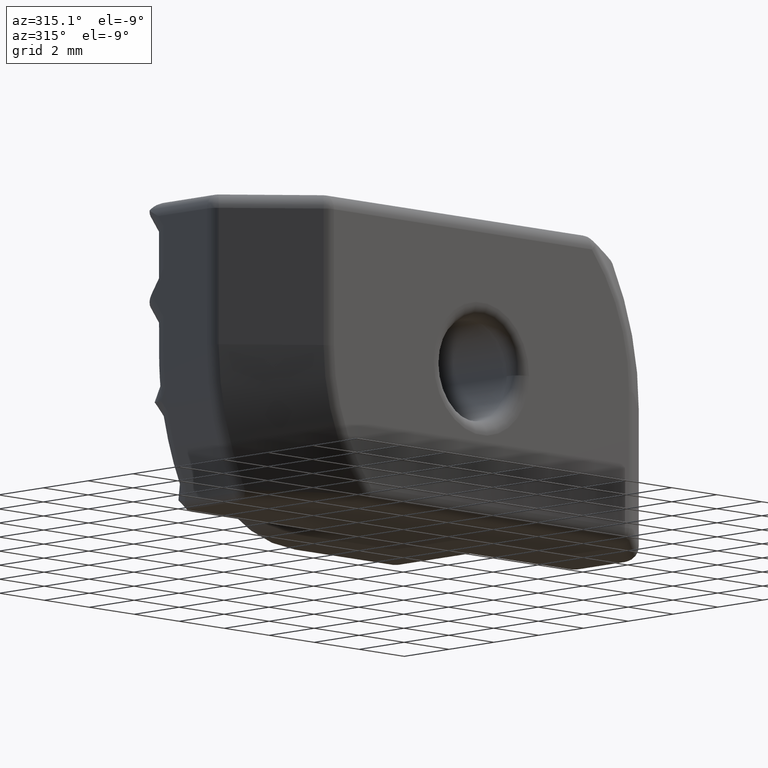
[diagram: clean part render]
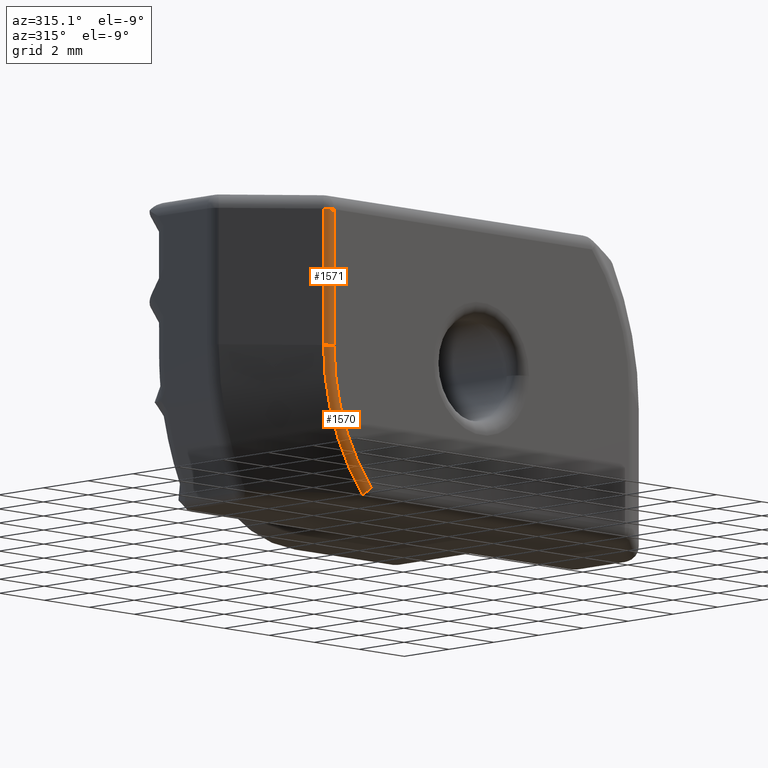
[diagram: same view with one multi-face feature highlighted, each face labeled with its STEP entity id]
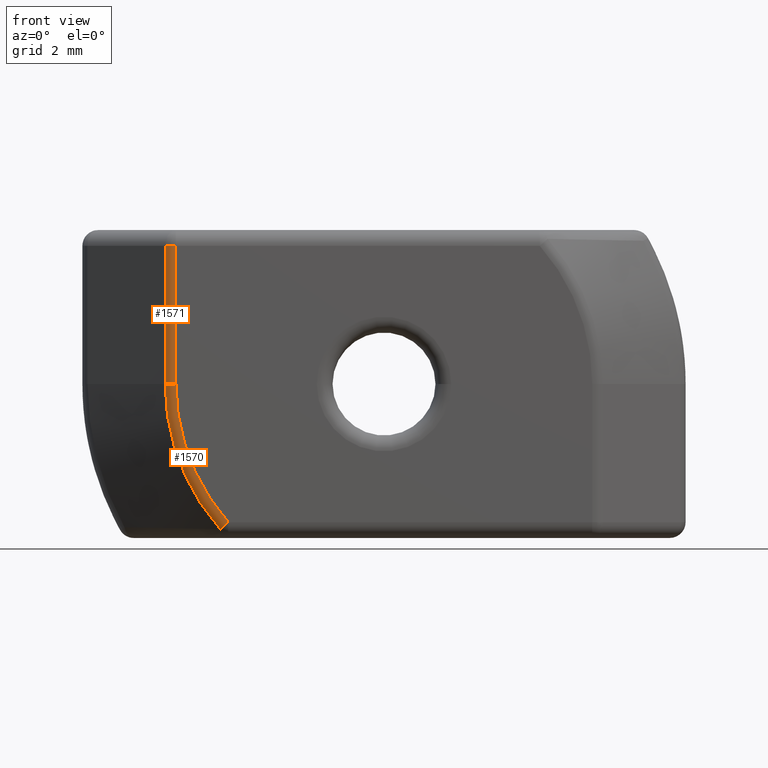
[diagram: same view with one multi-face feature highlighted, each face labeled with its STEP entity id]
A machine part, auxiliary view. The highlighted faces form ONE feature: a constant-radius fillet chain: 2 tangent blend faces with common blend radius 0.5 mm. The faces share edges in the B-rep.
A second angle (front view) of the same feature is appended — it is thin or edge-on in the first view.
Their STEP definitions:
[1] entity #1570 (Torus):
#79=CIRCLE('',#1681,6.55669656263408);
#93=CIRCLE('',#1713,0.500000000000001);
#95=CIRCLE('',#1716,0.5);
#96=CIRCLE('',#1717,6.89303295963223);
#147=TOROIDAL_SURFACE('',#1715,6.55669656263408,0.5);
#215=FACE_OUTER_BOUND('',#324,.T.);
#324=EDGE_LOOP('',(#1138,#1139,#1140,#1141));
#679=VERTEX_POINT('',#2468);
#680=VERTEX_POINT('',#2470);
#712=VERTEX_POINT('',#2676);
#713=VERTEX_POINT('',#2680);
#829=EDGE_CURVE('',#680,#679,#79,.T.);
#869=EDGE_CURVE('',#712,#680,#93,.F.);
#871=EDGE_CURVE('',#679,#713,#95,.T.);
#872=EDGE_CURVE('',#713,#712,#96,.T.);
#1138=ORIENTED_EDGE('',*,*,#871,.T.);
#1139=ORIENTED_EDGE('',*,*,#872,.T.);
#1140=ORIENTED_EDGE('',*,*,#869,.T.);
#1141=ORIENTED_EDGE('',*,*,#829,.T.);
#1570=ADVANCED_FACE('',(#215),#147,.T.);
#1681=AXIS2_PLACEMENT_3D('',#2471,#1948,#1949);
#1713=AXIS2_PLACEMENT_3D('',#2677,#2022,#2023);
#1715=AXIS2_PLACEMENT_3D('',#2679,#2026,#2027);
#1716=AXIS2_PLACEMENT_3D('',#2681,#2028,#2029);
#1717=AXIS2_PLACEMENT_3D('',#2682,#2030,#2031);
#1948=DIRECTION('center_axis',(0.,1.,0.));
#1949=DIRECTION('ref_axis',(-0.920735528751524,0.,-0.390187244915376));
#2022=DIRECTION('center_axis',(0.663443848337178,1.85243626107841E-11,-0.748226075530354));
#2023=DIRECTION('ref_axis',(-0.503311324758806,-0.739940073395943,-0.446280627130892));
#2026=DIRECTION('center_axis',(0.,-1.,0.));
#2027=DIRECTION('ref_axis',(0.,0.,-1.));
#2028=DIRECTION('center_axis',(-8.25232590446671E-16,0.,-1.));
#2029=DIRECTION('ref_axis',(0.,-1.,0.));
#2030=DIRECTION('center_axis',(0.,-1.,0.));
#2031=DIRECTION('ref_axis',(-0.920735528751524,0.,-0.390187244915376));
#2468=CARTESIAN_POINT('',(-6.55669656263408,-5.5,-2.77555756156289E-16));
#2470=CARTESIAN_POINT('',(-4.90589133740827,-5.5,-4.35));
#2471=CARTESIAN_POINT('Origin',(0.,-5.5,0.));
#2676=CARTESIAN_POINT('',(-5.15754699979899,-5.36997003669024,-4.57314031356551));
#2677=CARTESIAN_POINT('Origin',(-4.90589133741442,-5.,-4.34999999999307));
#2679=CARTESIAN_POINT('Origin',(0.,-5.,0.));
#2680=CARTESIAN_POINT('',(-6.89303295963223,-5.36997003669797,0.));
#2681=CARTESIAN_POINT('Origin',(-6.55669656263408,-5.,-2.77555756156289E-16));
#2682=CARTESIAN_POINT('Origin',(0.,-5.36997003669797,2.77555756156289E-16));
[2] entity #1571 (Cylinder):
#87=CIRCLE('',#1705,0.5);
#95=CIRCLE('',#1716,0.5);
#216=FACE_OUTER_BOUND('',#325,.T.);
#325=EDGE_LOOP('',(#1142,#1143,#1144,#1145));
#428=LINE('',#2469,#529);
#439=LINE('',#2684,#540);
#529=VECTOR('',#1947,4.35);
#540=VECTOR('',#2034,4.35);
#678=VERTEX_POINT('',#2466);
#679=VERTEX_POINT('',#2468);
#707=VERTEX_POINT('',#2662);
#713=VERTEX_POINT('',#2680);
#828=EDGE_CURVE('',#679,#678,#428,.T.);
#863=EDGE_CURVE('',#678,#707,#87,.F.);
#871=EDGE_CURVE('',#679,#713,#95,.T.);
#873=EDGE_CURVE('',#707,#713,#439,.T.);
#1142=ORIENTED_EDGE('',*,*,#863,.T.);
#1143=ORIENTED_EDGE('',*,*,#873,.T.);
#1144=ORIENTED_EDGE('',*,*,#871,.F.);
#1145=ORIENTED_EDGE('',*,*,#828,.T.);
#1517=CYLINDRICAL_SURFACE('',#1718,0.5);
#1571=ADVANCED_FACE('',(#216),#1517,.T.);
#1705=AXIS2_PLACEMENT_3D('',#2665,#2006,#2007);
#1716=AXIS2_PLACEMENT_3D('',#2681,#2028,#2029);
#1718=AXIS2_PLACEMENT_3D('',#2683,#2032,#2033);
#1947=DIRECTION('',(0.,0.,1.));
#2006=DIRECTION('center_axis',(0.,0.,1.));
#2007=DIRECTION('ref_axis',(0.,-1.,0.));
#2028=DIRECTION('center_axis',(-8.25232590446671E-16,0.,-1.));
#2029=DIRECTION('ref_axis',(0.,-1.,0.));
#2032=DIRECTION('center_axis',(0.,0.,1.));
#2033=DIRECTION('ref_axis',(-0.360596676776186,-0.932721843154738,0.));
#2034=DIRECTION('',(0.,0.,-1.));
#2466=CARTESIAN_POINT('',(-6.55669656263408,-5.5,4.35));
#2468=CARTESIAN_POINT('',(-6.55669656263408,-5.5,-2.77555756156289E-16));
#2469=CARTESIAN_POINT('',(-6.55669656263408,-5.5,0.));
#2662=CARTESIAN_POINT('',(-6.89303295963223,-5.36997003669797,4.35));
#2665=CARTESIAN_POINT('Origin',(-6.55669656263408,-5.,4.35));
#2680=CARTESIAN_POINT('',(-6.89303295963223,-5.36997003669797,0.));
#2681=CARTESIAN_POINT('Origin',(-6.55669656263408,-5.,-2.77555756156289E-16));
#2683=CARTESIAN_POINT('Origin',(-6.55669656263408,-5.,0.));
#2684=CARTESIAN_POINT('',(-6.89303295963223,-5.36997003669797,0.));